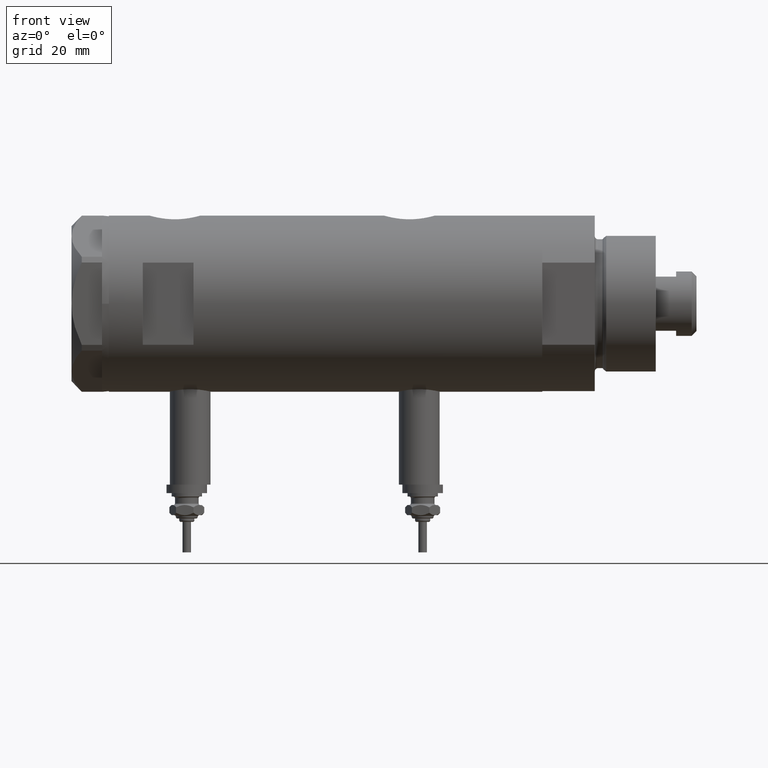
[diagram: clean part render]
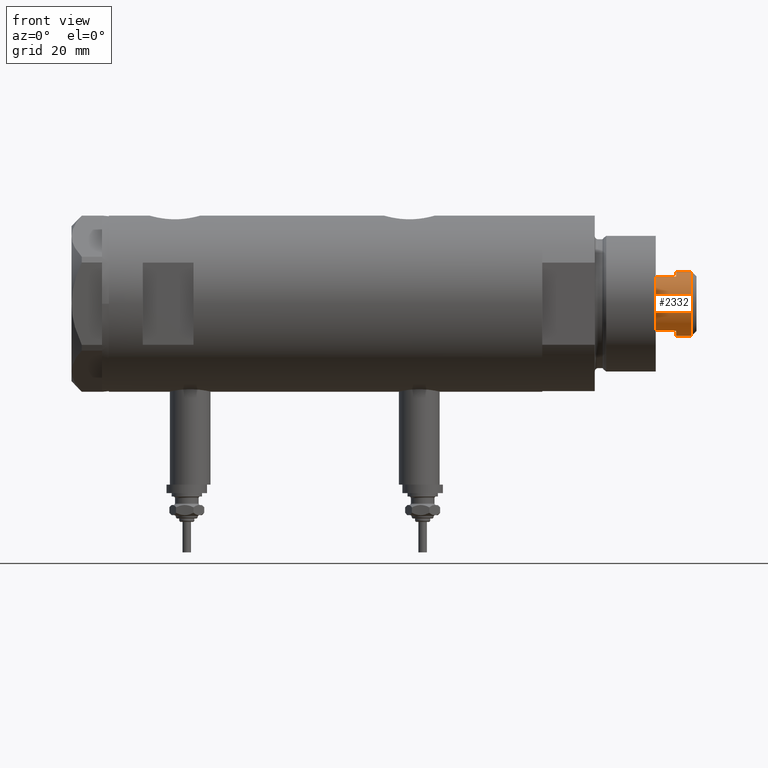
[diagram: same view with one face highlighted and labeled with its STEP entity id]
A machine part, front view. The second image highlights one B-rep face of the part: STEP entity #2332.
In plain terms, the highlighted cylindrical surface (edge-blend (fillet) strip) has radius 9.5 mm, axis along (-1, -0, 0).
Its self-contained STEP definition (entity closure, byte-faithful):
#71 = CIRCLE ( 'NONE', #3634, 9.500000000000000000 ) ;
#77 = AXIS2_PLACEMENT_3D ( 'NONE', #4042, #3556, #1146 ) ;
#105 = EDGE_CURVE ( 'NONE', #1078, #6179, #1052, .T. ) ;
#130 = DIRECTION ( 'NONE',  ( -0.000000000000000000, -0.000000000000000000, -1.000000000000000000 ) ) ;
#172 = VERTEX_POINT ( 'NONE', #4396 ) ;
#229 = DIRECTION ( 'NONE',  ( 1.000000000000000000, 0.000000000000000000, 0.000000000000000000 ) ) ;
#261 = CARTESIAN_POINT ( 'NONE',  ( -9.500000000000000000, 0.000000000000000000, 143.5999999999999943 ) ) ;
#457 = LINE ( 'NONE', #3892, #2313 ) ;
#511 = EDGE_CURVE ( 'NONE', #2081, #701, #2549, .T. ) ;
#552 = ORIENTED_EDGE ( 'NONE', *, *, #4696, .F. ) ;
#701 = VERTEX_POINT ( 'NONE', #261 ) ;
#728 = DIRECTION ( 'NONE',  ( 0.000000000000000000, 0.000000000000000000, -1.000000000000000000 ) ) ;
#933 = CARTESIAN_POINT ( 'NONE',  ( 9.500000000000000000, 1.163414459189985485E-15, 143.5999999999999943 ) ) ;
#998 = EDGE_CURVE ( 'NONE', #1078, #3182, #2994, .T. ) ;
#1052 = CIRCLE ( 'NONE', #4111, 9.500000000000000000 ) ;
#1078 = VERTEX_POINT ( 'NONE', #1429 ) ;
#1146 = DIRECTION ( 'NONE',  ( 1.000000000000000000, 0.000000000000000000, 0.000000000000000000 ) ) ;
#1429 = CARTESIAN_POINT ( 'NONE',  ( 7.982950582334832568, -5.149999999999997691, 143.5999999999999943 ) ) ;
#1504 = CARTESIAN_POINT ( 'NONE',  ( 0.000000000000000000, 0.000000000000000000, 143.5999999999999943 ) ) ;
#1577 = CARTESIAN_POINT ( 'NONE',  ( 0.000000000000000000, 0.000000000000000000, 143.5999999999999943 ) ) ;
#1580 = LINE ( 'NONE', #2878, #3336 ) ;
#1625 = CIRCLE ( 'NONE', #77, 9.500000000000001776 ) ;
#1694 = DIRECTION ( 'NONE',  ( 0.000000000000000000, 0.000000000000000000, 1.000000000000000000 ) ) ;
#1712 = ORIENTED_EDGE ( 'NONE', *, *, #3109, .T. ) ;
#1734 = VERTEX_POINT ( 'NONE', #4467 ) ;
#1803 = AXIS2_PLACEMENT_3D ( 'NONE', #1577, #2547, #5721 ) ;
#1805 = ORIENTED_EDGE ( 'NONE', *, *, #5430, .T. ) ;
#1811 = CIRCLE ( 'NONE', #5148, 9.500000000000001776 ) ;
#2081 = VERTEX_POINT ( 'NONE', #2263 ) ;
#2203 = CYLINDRICAL_SURFACE ( 'NONE', #1803, 9.500000000000001776 ) ;
#2225 = ORIENTED_EDGE ( 'NONE', *, *, #105, .T. ) ;
#2263 = CARTESIAN_POINT ( 'NONE',  ( -9.500000000000001776, 0.000000000000000000, 148.1999999999999886 ) ) ;
#2313 = VECTOR ( 'NONE', #5850, 1000.000000000000000 ) ;
#2332 = ADVANCED_FACE ( 'NONE', ( #2675 ), #2203, .T. ) ;
#2528 = DIRECTION ( 'NONE',  ( 1.000000000000000000, 0.000000000000000000, 0.000000000000000000 ) ) ;
#2547 = DIRECTION ( 'NONE',  ( -0.000000000000000000, -0.000000000000000000, -1.000000000000000000 ) ) ;
#2549 = LINE ( 'NONE', #3544, #5831 ) ;
#2675 = FACE_OUTER_BOUND ( 'NONE', #5103, .T. ) ;
#2878 = CARTESIAN_POINT ( 'NONE',  ( -7.982950582334829015, -5.150000000000001243, 143.5999999999999943 ) ) ;
#2911 = CARTESIAN_POINT ( 'NONE',  ( 7.982950582334832568, -5.149999999999997691, 143.5999999999999943 ) ) ;
#2944 = VERTEX_POINT ( 'NONE', #5199 ) ;
#2994 = LINE ( 'NONE', #2911, #3788 ) ;
#3109 = EDGE_CURVE ( 'NONE', #172, #2081, #1811, .T. ) ;
#3182 = VERTEX_POINT ( 'NONE', #5834 ) ;
#3336 = VECTOR ( 'NONE', #3391, 1000.000000000000000 ) ;
#3391 = DIRECTION ( 'NONE',  ( -0.000000000000000000, -0.000000000000000000, -1.000000000000000000 ) ) ;
#3393 = CARTESIAN_POINT ( 'NONE',  ( 0.000000000000000000, 0.000000000000000000, 143.5999999999999943 ) ) ;
#3544 = CARTESIAN_POINT ( 'NONE',  ( -9.500000000000001776, 0.000000000000000000, 143.5999999999999943 ) ) ;
#3556 = DIRECTION ( 'NONE',  ( 0.000000000000000000, 0.000000000000000000, 1.000000000000000000 ) ) ;
#3634 = AXIS2_PLACEMENT_3D ( 'NONE', #3393, #1694, #2528 ) ;
#3788 = VECTOR ( 'NONE', #4921, 1000.000000000000000 ) ;
#3892 = CARTESIAN_POINT ( 'NONE',  ( 9.500000000000001776, 1.163414459189985682E-15, 143.5999999999999943 ) ) ;
#4042 = CARTESIAN_POINT ( 'NONE',  ( 0.000000000000000000, 0.000000000000000000, 137.5999999999999943 ) ) ;
#4111 = AXIS2_PLACEMENT_3D ( 'NONE', #1504, #5812, #5420 ) ;
#4320 = ORIENTED_EDGE ( 'NONE', *, *, #4450, .T. ) ;
#4396 = CARTESIAN_POINT ( 'NONE',  ( 9.500000000000001776, 1.163414459189985682E-15, 148.1999999999999886 ) ) ;
#4450 = EDGE_CURVE ( 'NONE', #701, #2944, #71, .T. ) ;
#4467 = CARTESIAN_POINT ( 'NONE',  ( -7.982950582334825462, -5.150000000000019007, 137.5999999999999943 ) ) ;
#4531 = EDGE_CURVE ( 'NONE', #1734, #3182, #1625, .T. ) ;
#4694 = ORIENTED_EDGE ( 'NONE', *, *, #511, .T. ) ;
#4696 = EDGE_CURVE ( 'NONE', #172, #6179, #457, .T. ) ;
#4921 = DIRECTION ( 'NONE',  ( -0.000000000000000000, -0.000000000000000000, -1.000000000000000000 ) ) ;
#5089 = CARTESIAN_POINT ( 'NONE',  ( 0.000000000000000000, 0.000000000000000000, 148.1999999999999886 ) ) ;
#5103 = EDGE_LOOP ( 'NONE', ( #552, #1712, #4694, #4320, #1805, #5203, #5146, #2225 ) ) ;
#5146 = ORIENTED_EDGE ( 'NONE', *, *, #998, .F. ) ;
#5148 = AXIS2_PLACEMENT_3D ( 'NONE', #5089, #728, #229 ) ;
#5199 = CARTESIAN_POINT ( 'NONE',  ( -7.982950582334825462, -5.150000000000003020, 143.5999999999999943 ) ) ;
#5203 = ORIENTED_EDGE ( 'NONE', *, *, #4531, .T. ) ;
#5420 = DIRECTION ( 'NONE',  ( 1.000000000000000000, 0.000000000000000000, 0.000000000000000000 ) ) ;
#5430 = EDGE_CURVE ( 'NONE', #2944, #1734, #1580, .T. ) ;
#5721 = DIRECTION ( 'NONE',  ( -1.000000000000000000, 0.000000000000000000, 0.000000000000000000 ) ) ;
#5812 = DIRECTION ( 'NONE',  ( 0.000000000000000000, 0.000000000000000000, 1.000000000000000000 ) ) ;
#5831 = VECTOR ( 'NONE', #130, 1000.000000000000000 ) ;
#5834 = CARTESIAN_POINT ( 'NONE',  ( 7.982950582334834344, -5.150000000000009237, 137.5999999999999943 ) ) ;
#5850 = DIRECTION ( 'NONE',  ( -0.000000000000000000, -0.000000000000000000, -1.000000000000000000 ) ) ;
#6179 = VERTEX_POINT ( 'NONE', #933 ) ;